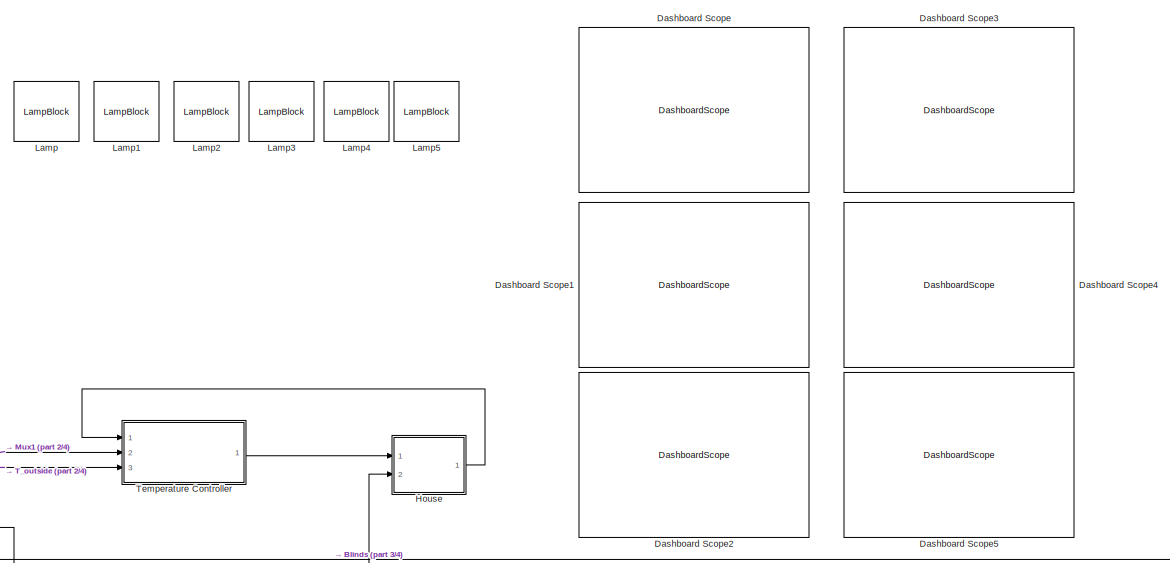
[diagram: root canvas - part 1/4, top right region]
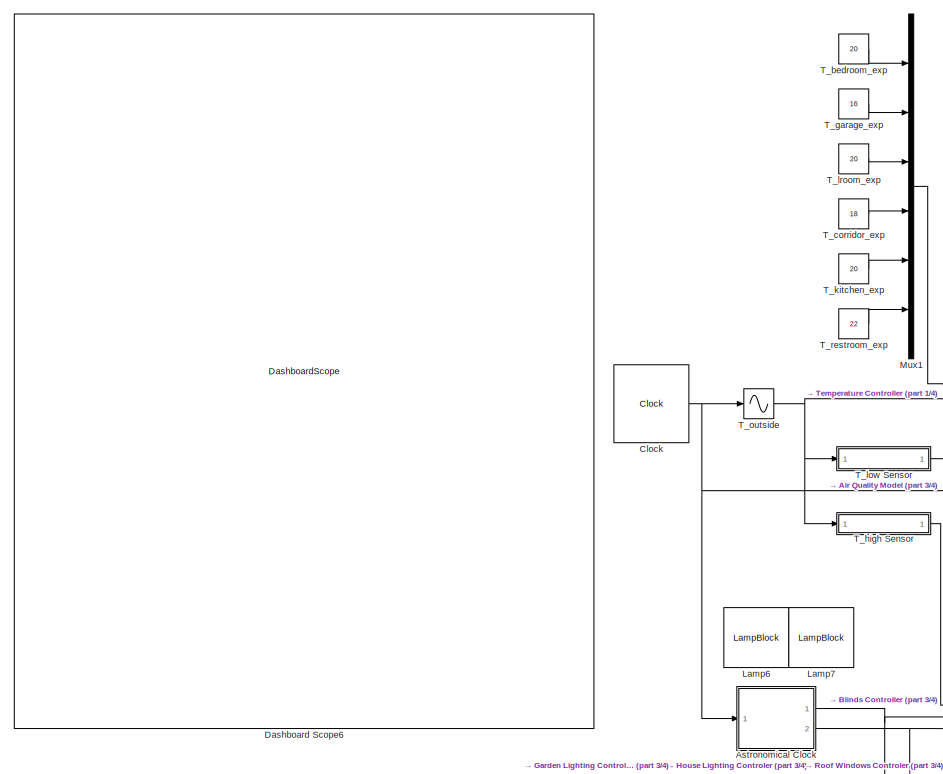
[diagram: root canvas - part 2/4, top left region]
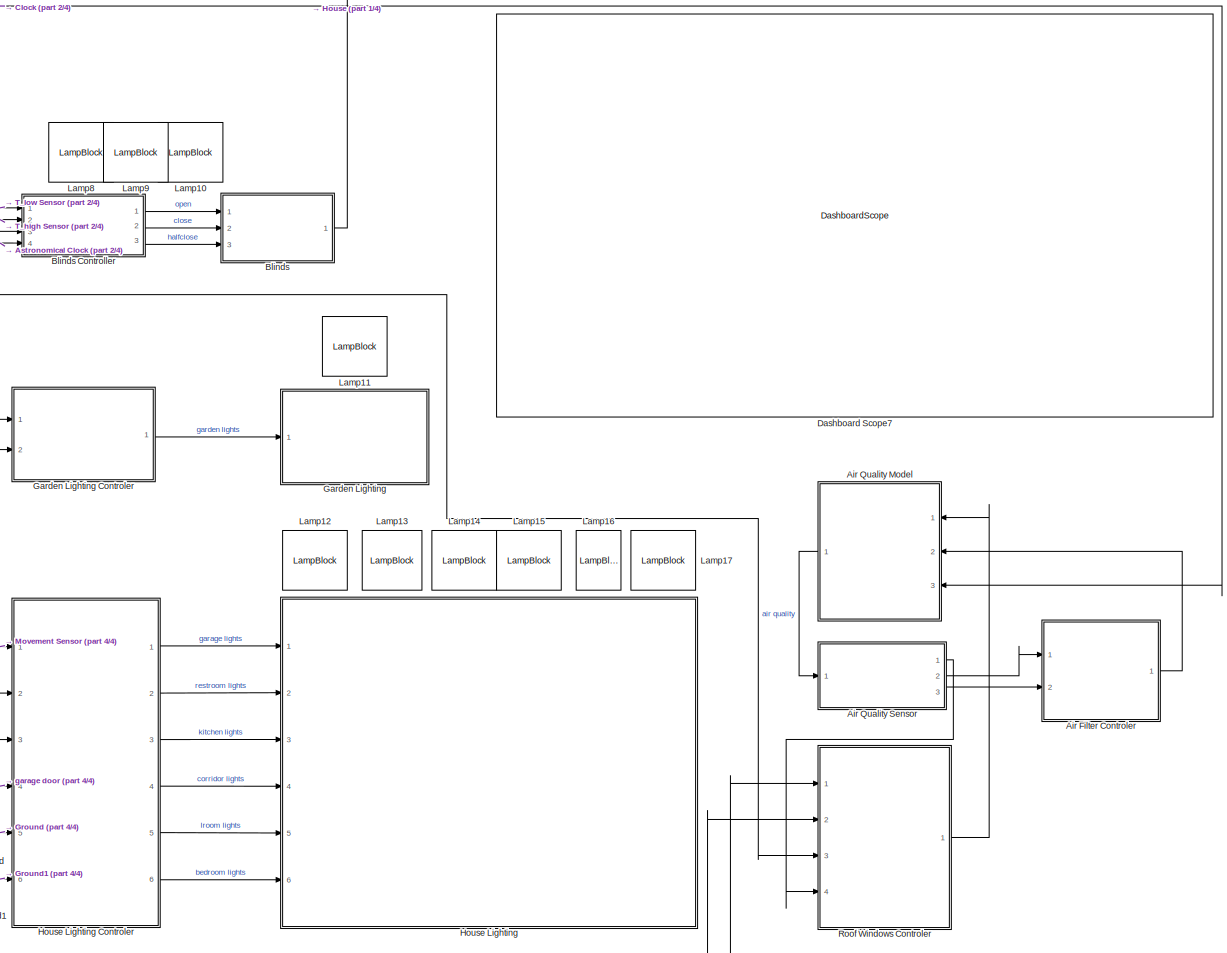
[diagram: root canvas - part 3/4, middle right region]
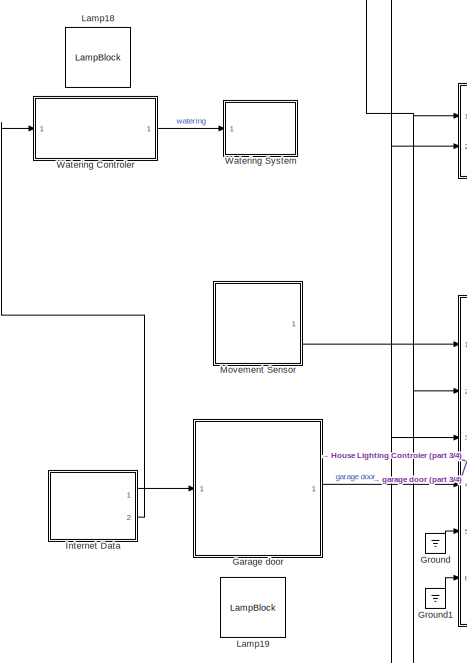
[diagram: root canvas - part 4/4, bottom center region]
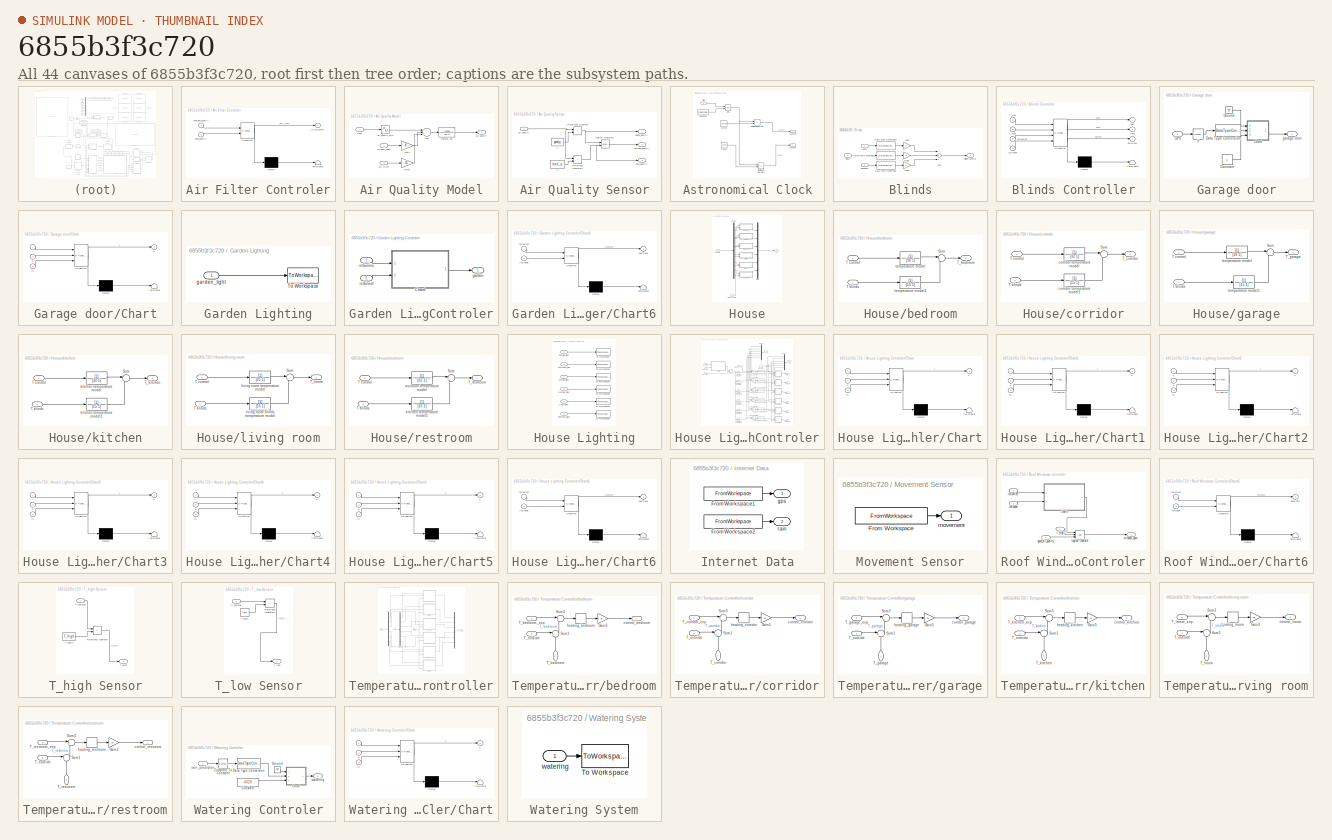
[diagram: thumbnail index - all 44 canvases of the model, root first then tree order]
MODEL slx_6855b3f3c720
KIND model
CONFIG AbsTol = auto
CONFIG EnableMultiTasking = off
CONFIG FixedStep = auto
CONFIG MaxStep = auto
CONFIG MinStep = auto
CONFIG RelTol = 1e-3
CONFIG SampleTimeConstraint = Unconstrained
CONFIG Solver = VariableStepAuto
CONFIG SolverName = VariableStepAuto
CONFIG StartTime = 0.0
CONFIG StopTime = intervals
BLOCK [SubSystem] Air Filter Controler
  ErrorFcn = Stateflow.Translate.translate
  PermitHierarchicalResolution = ExplicitOnly
  Ports = [2, 1]
  RequestExecContextInheritance = off
  SFBlockType = Chart
  TreatAsAtomicUnit = on
BLOCK [Demux] Air Filter Controler/ Demux 
  Outputs = 1
  Ports = [1, 1]
BLOCK [S-Function] Air Filter Controler/ SFunction 
  EnableBusSupport = on
  FunctionName = sf_sfun
  PortCounts = [2 2]
  Ports = [2, 2]
  SFcnIsStateOwnerBlock = off
  SFunctionDeploymentMode = off
  Tag = Stateflow S-Function system_test 12
BLOCK [Terminator] Air Filter Controler/ Terminator 
BLOCK [Inport] Air Filter Controler/average_quality
  IconDisplay = Port number
BLOCK [Inport] Air Filter Controler/bad_quality
  IconDisplay = Port number
  Port = 2
BLOCK [Outport] Air Filter Controler/filter_state
  IconDisplay = Port number
BLOCK [SubSystem] Air Quality Model
  Ports = [3, 1]
  RequestExecContextInheritance = off
BLOCK [Sum] Air Quality Model/Add
  InputSameDT = off
  Inputs = +++
  OutDataTypeStr = Inherit: Inherit via internal rule
  Ports = [3, 1]
  SaturateOnIntegerOverflow = off
BLOCK [Gain] Air Quality Model/Gain
  OutDataTypeStr = Inherit: Inherit via internal rule
  ParamDataTypeStr = Inherit: Inherit via internal rule
  SaturateOnIntegerOverflow = off
BLOCK [Gain] Air Quality Model/Gain1
  Gain = -15
  OutDataTypeStr = Inherit: Inherit via internal rule
  ParamDataTypeStr = Inherit: Inherit via internal rule
  SaturateOnIntegerOverflow = off
BLOCK [TransferFcn] Air Quality Model/Transfer Fcn
  Denominator = [60 1]
  Numerator = [1000]
BLOCK [Inport] Air Quality Model/air_filter
  IconDisplay = Port number
  Port = 2
BLOCK [Outport] Air Quality Model/air_quality
  IconDisplay = Port number
BLOCK [Sin] Air Quality Model/air_quality_sim
  Amplitude = 0.4
  Bias = 0.6
  Frequency = 2*pi/stepsInDay
  Phase = -pi/2
  Ports = [1, 1]
  SampleTime = 0
  TimeSource = Use external signal
BLOCK [Inport] Air Quality Model/clock
  IconDisplay = Port number
  Port = 3
BLOCK [Inport] Air Quality Model/window_open
  IconDisplay = Port number
BLOCK [SubSystem] Air Quality Sensor
  Ports = [1, 3]
  RequestExecContextInheritance = off
BLOCK [Constant] Air Quality Sensor/1
  Value = good_q
BLOCK [Constant] Air Quality Sensor/3
  Value = bad_q
BLOCK [Logic] Air Quality Sensor/Logical Operator1
  AllPortsSameDT = off
  Operator = NAND
  OutDataTypeStr = boolean
  Ports = [2, 1]
BLOCK [RelationalOperator] Air Quality Sensor/Relational Operator
  InputSameDT = off
  Operator = >
  OutDataTypeStr = boolean
  Ports = [2, 1]
  RndMeth = Simplest
BLOCK [RelationalOperator] Air Quality Sensor/Relational Operator2
  InputSameDT = off
  Operator = >
  OutDataTypeStr = boolean
  Ports = [2, 1]
  RndMeth = Simplest
BLOCK [Inport] Air Quality Sensor/air_quality
  IconDisplay = Port number
BLOCK [Outport] Air Quality Sensor/avarage_quality
  IconDisplay = Port number
  Port = 2
BLOCK [Outport] Air Quality Sensor/bad_quality
  IconDisplay = Port number
  Port = 3
BLOCK [Outport] Air Quality Sensor/good_quality
  IconDisplay = Port number
BLOCK [SubSystem] Astronomical Clock
  Ports = [1, 2]
  RequestExecContextInheritance = off
BLOCK [Math] Astronomical Clock/Mod
  Operator = mod
  Ports = [2, 1]
BLOCK [RelationalOperator] Astronomical Clock/Relational Operator
  InputSameDT = off
  Operator = ==
  OutDataTypeStr = boolean
  Ports = [2, 1]
  RndMeth = Simplest
BLOCK [RelationalOperator] Astronomical Clock/Relational Operator1
  InputSameDT = off
  Operator = ==
  OutDataTypeStr = boolean
  Ports = [2, 1]
  RndMeth = Simplest
BLOCK [Outport] Astronomical Clock/isSunrise
  IconDisplay = Port number
BLOCK [Outport] Astronomical Clock/isSunset
  IconDisplay = Port number
  Port = 2
BLOCK [Constant] Astronomical Clock/stepsInDay
  Value = stepsInDay
BLOCK [Constant] Astronomical Clock/sunrise
  Value = sunrise
BLOCK [Constant] Astronomical Clock/sunset
  Value = sunset
BLOCK [Inport] Astronomical Clock/time
  IconDisplay = Port number
BLOCK [SubSystem] Blinds
  Ports = [3, 1]
  RequestExecContextInheritance = off
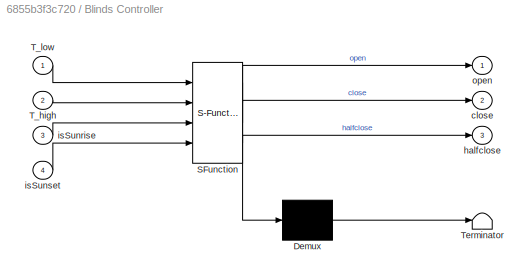
BLOCK [SubSystem] Blinds Controller
  ErrorFcn = Stateflow.Translate.translate
  PermitHierarchicalResolution = ExplicitOnly
  Ports = [4, 3]
  RequestExecContextInheritance = off
  SFBlockType = Chart
  TreatAsAtomicUnit = on
BLOCK [Demux] Blinds Controller/ Demux 
  Outputs = 1
  Ports = [1, 1]
BLOCK [S-Function] Blinds Controller/ SFunction 
  EnableBusSupport = on
  FunctionName = sf_sfun
  PortCounts = [4 4]
  Ports = [4, 4]
  SFcnIsStateOwnerBlock = off
  SFunctionDeploymentMode = off
  Tag = Stateflow S-Function system_test 3
BLOCK [Terminator] Blinds Controller/ Terminator 
BLOCK [Inport] Blinds Controller/T_high
  IconDisplay = Port number
  Port = 2
BLOCK [Inport] Blinds Controller/T_low
  IconDisplay = Port number
BLOCK [Outport] Blinds Controller/close
  IconDisplay = Port number
  Port = 2
BLOCK [Outport] Blinds Controller/halfclose
  IconDisplay = Port number
  Port = 3
BLOCK [Inport] Blinds Controller/isSunrise
  IconDisplay = Port number
  Port = 3
BLOCK [Inport] Blinds Controller/isSunset
  IconDisplay = Port number
  Port = 4
BLOCK [Outport] Blinds Controller/open
  IconDisplay = Port number
BLOCK [Outport] Blinds/Blinds control
  IconDisplay = Port number
BLOCK [DataTypeConversion] Blinds/Data Type Conversion
  RndMeth = Floor
  SaturateOnIntegerOverflow = off
BLOCK [DataTypeConversion] Blinds/Data Type Conversion1
  RndMeth = Floor
  SaturateOnIntegerOverflow = off
BLOCK [DataTypeConversion] Blinds/Data Type Conversion2
  RndMeth = Floor
  SaturateOnIntegerOverflow = off
BLOCK [Gain] Blinds/Gain
  Gain = 2
  OutDataTypeStr = Inherit: Inherit via internal rule
  ParamDataTypeStr = Inherit: Inherit via internal rule
  SaturateOnIntegerOverflow = off
BLOCK [Gain] Blinds/Gain1
  Gain = 0
  OutDataTypeStr = Inherit: Inherit via internal rule
  ParamDataTypeStr = Inherit: Inherit via internal rule
  SaturateOnIntegerOverflow = off
BLOCK [Gain] Blinds/Gain2
  OutDataTypeStr = Inherit: Inherit via internal rule
  ParamDataTypeStr = Inherit: Inherit via internal rule
  SaturateOnIntegerOverflow = off
BLOCK [Sum] Blinds/Sum
  InputSameDT = off
  Inputs = +++
  OutDataTypeStr = Inherit: Inherit via internal rule
  Ports = [3, 1]
  SaturateOnIntegerOverflow = off
BLOCK [Inport] Blinds/close
  IconDisplay = Port number
  Port = 2
BLOCK [Inport] Blinds/halfclose
  IconDisplay = Port number
  Port = 3
BLOCK [Inport] Blinds/open
  IconDisplay = Port number
BLOCK [Clock] Clock 
  Decimation = 1
  DisplayTime = on
BLOCK [DashboardScope] Dashboard Scope
  WebBlockId = 25
BLOCK [DashboardScope] Dashboard Scope1
  WebBlockId = 26
BLOCK [DashboardScope] Dashboard Scope2
  WebBlockId = 27
BLOCK [DashboardScope] Dashboard Scope3
  WebBlockId = 28
BLOCK [DashboardScope] Dashboard Scope4
  WebBlockId = 29
BLOCK [DashboardScope] Dashboard Scope5
  WebBlockId = 30
BLOCK [DashboardScope] Dashboard Scope6
  WebBlockId = 31
  Ymax = 30
BLOCK [DashboardScope] Dashboard Scope7
  WebBlockId = 321
  Ymax = 1000
  Ymin = 0
BLOCK [SubSystem] Garage door
  Ports = [1, 1]
  RequestExecContextInheritance = off
BLOCK [SubSystem] Garage door/Chart
  ErrorFcn = Stateflow.Translate.translate
  PermitHierarchicalResolution = ExplicitOnly
  Ports = [3, 1]
  RequestExecContextInheritance = off
  SFBlockType = Chart
  TreatAsAtomicUnit = on
BLOCK [Demux] Garage door/Chart/ Demux 
  Outputs = 1
  Ports = [1, 1]
BLOCK [S-Function] Garage door/Chart/ SFunction 
  EnableBusSupport = on
  FunctionName = sf_sfun
  PortCounts = [3 2]
  Ports = [3, 2]
  SFcnIsStateOwnerBlock = off
  SFunctionDeploymentMode = off
  Tag = Stateflow S-Function system_test 10
BLOCK [Terminator] Garage door/Chart/ Terminator 
BLOCK [Inport] Garage door/Chart/ts
  IconDisplay = Port number
  Port = 3
BLOCK [Inport] Garage door/Chart/u
  IconDisplay = Port number
  Port = 2
BLOCK [Outport] Garage door/Chart/x
  IconDisplay = Port number
BLOCK [Inport] Garage door/Chart/y
  IconDisplay = Port number
BLOCK [Constant] Garage door/Constant
  Value = 5
BLOCK [DataTypeConversion] Garage door/Data Type Conversion
  RndMeth = Floor
  SaturateOnIntegerOverflow = off
BLOCK [Inport] Garage door/GPS
  IconDisplay = Port number
BLOCK [Ground] Garage door/Ground
BLOCK [Outport] Garage door/garage door
  IconDisplay = Port number
BLOCK [Reference] Garage door/if  REF=simulink/Logic and Bit
Operations/Compare
To Constant
  Ports = [1, 1]
  SourceBlock = simulink/Logic and Bit\nOperations/Compare\nTo Constant
  SourceProductBaseCode = SL
  SourceProductName = Simulink
  SourceType = Compare To Constant
BLOCK [SubSystem] Garden Lighting
  Ports = [1]
  RequestExecContextInheritance = off
BLOCK [SubSystem] Garden Lighting Controler
  Ports = [2, 1]
  RequestExecContextInheritance = off
BLOCK [SubSystem] Garden Lighting Controler/Chart6
  ErrorFcn = Stateflow.Translate.translate
  PermitHierarchicalResolution = ExplicitOnly
  Ports = [2, 1]
  RequestExecContextInheritance = off
  SFBlockType = Chart
  TreatAsAtomicUnit = on
BLOCK [Demux] Garden Lighting Controler/Chart6/ Demux 
  Outputs = 1
  Ports = [1, 1]
BLOCK [S-Function] Garden Lighting Controler/Chart6/ SFunction 
  EnableBusSupport = on
  FunctionName = sf_sfun
  PortCounts = [2 2]
  Ports = [2, 2]
  SFcnIsStateOwnerBlock = off
  SFunctionDeploymentMode = off
  Tag = Stateflow S-Function system_test 8
BLOCK [Terminator] Garden Lighting Controler/Chart6/ Terminator 
BLOCK [Inport] Garden Lighting Controler/Chart6/isSunrise
  IconDisplay = Port number
BLOCK [Inport] Garden Lighting Controler/Chart6/isSunset
  IconDisplay = Port number
  Port = 2
BLOCK [Outport] Garden Lighting Controler/Chart6/sunState
  IconDisplay = Port number
BLOCK [Outport] Garden Lighting Controler/garden
  IconDisplay = Port number
BLOCK [Inport] Garden Lighting Controler/isSunrise
  IconDisplay = Port number
BLOCK [Inport] Garden Lighting Controler/isSunset
  IconDisplay = Port number
  Port = 2
BLOCK [ToWorkspace] Garden Lighting/To Workspace
  FixptAsFi = on
  MaxDataPoints = inf
  Ports = [1]
  SampleTime = -1
  Save2DSignal = 3-D array (concatenate along third dimension)
  SaveFormat = Timeseries
  VariableName = garden_light
BLOCK [Inport] Garden Lighting/garden_light
  IconDisplay = Port number
BLOCK [Ground] Ground
BLOCK [Ground] Ground1
BLOCK [SubSystem] House
  Ports = [2, 1]
  RequestExecContextInheritance = off
BLOCK [SubSystem] House Lighting
  Ports = [6]
  RequestExecContextInheritance = off
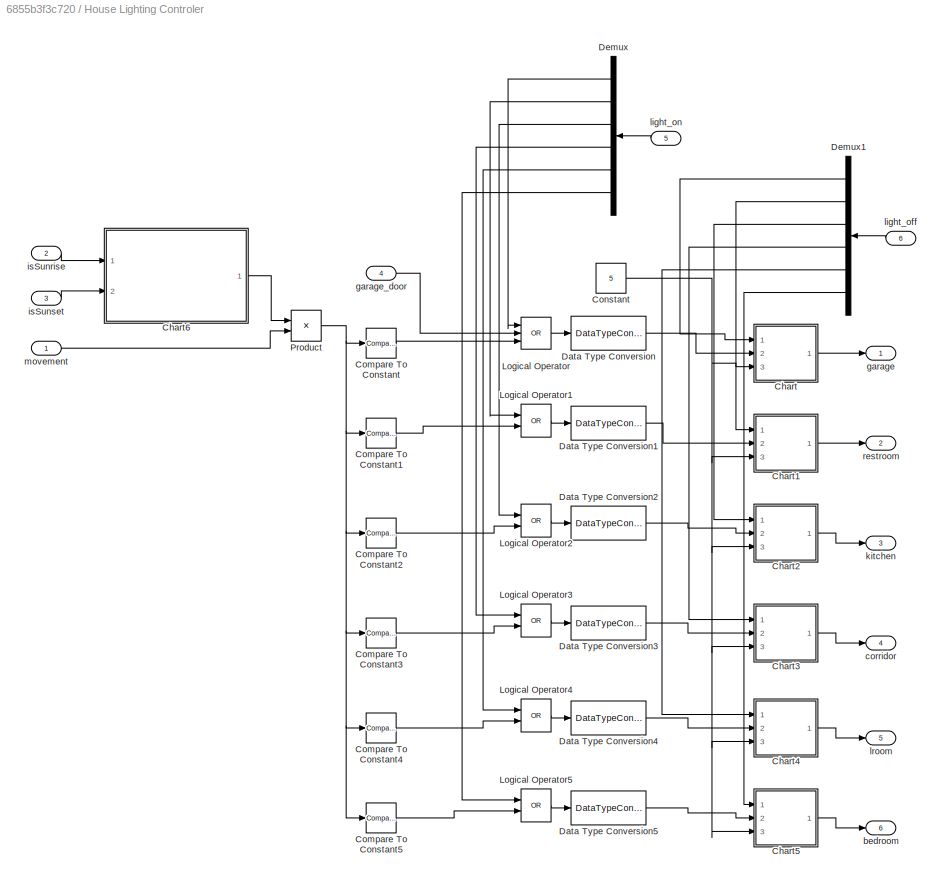
BLOCK [SubSystem] House Lighting Controler
  Ports = [6, 6]
  RequestExecContextInheritance = off
BLOCK [SubSystem] House Lighting Controler/Chart
  ErrorFcn = Stateflow.Translate.translate
  PermitHierarchicalResolution = ExplicitOnly
  Ports = [3, 1]
  RequestExecContextInheritance = off
  SFBlockType = Chart
  TreatAsAtomicUnit = on
BLOCK [Demux] House Lighting Controler/Chart/ Demux 
  Outputs = 1
  Ports = [1, 1]
BLOCK [S-Function] House Lighting Controler/Chart/ SFunction 
  EnableBusSupport = on
  FunctionName = sf_sfun
  PortCounts = [3 2]
  Ports = [3, 2]
  SFcnIsStateOwnerBlock = off
  SFunctionDeploymentMode = off
  Tag = Stateflow S-Function system_test 1
BLOCK [Terminator] House Lighting Controler/Chart/ Terminator 
BLOCK [Inport] House Lighting Controler/Chart/ts
  IconDisplay = Port number
  Port = 3
BLOCK [Inport] House Lighting Controler/Chart/u
  IconDisplay = Port number
  Port = 2
BLOCK [Outport] House Lighting Controler/Chart/x
  IconDisplay = Port number
BLOCK [Inport] House Lighting Controler/Chart/y
  IconDisplay = Port number
BLOCK [SubSystem] House Lighting Controler/Chart1
  ErrorFcn = Stateflow.Translate.translate
  PermitHierarchicalResolution = ExplicitOnly
  Ports = [3, 1]
  RequestExecContextInheritance = off
  SFBlockType = Chart
  TreatAsAtomicUnit = on
BLOCK [Demux] House Lighting Controler/Chart1/ Demux 
  Outputs = 1
  Ports = [1, 1]
BLOCK [S-Function] House Lighting Controler/Chart1/ SFunction 
  EnableBusSupport = on
  FunctionName = sf_sfun
  PortCounts = [3 2]
  Ports = [3, 2]
  SFcnIsStateOwnerBlock = off
  SFunctionDeploymentMode = off
  Tag = Stateflow S-Function system_test 2
BLOCK [Terminator] House Lighting Controler/Chart1/ Terminator 
BLOCK [Inport] House Lighting Controler/Chart1/ts
  IconDisplay = Port number
  Port = 3
BLOCK [Inport] House Lighting Controler/Chart1/u
  IconDisplay = Port number
  Port = 2
BLOCK [Outport] House Lighting Controler/Chart1/x
  IconDisplay = Port number
BLOCK [Inport] House Lighting Controler/Chart1/y
  IconDisplay = Port number
BLOCK [SubSystem] House Lighting Controler/Chart2
  ErrorFcn = Stateflow.Translate.translate
  PermitHierarchicalResolution = ExplicitOnly
  Ports = [3, 1]
  RequestExecContextInheritance = off
  SFBlockType = Chart
  TreatAsAtomicUnit = on
BLOCK [Demux] House Lighting Controler/Chart2/ Demux 
  Outputs = 1
  Ports = [1, 1]
BLOCK [S-Function] House Lighting Controler/Chart2/ SFunction 
  EnableBusSupport = on
  FunctionName = sf_sfun
  PortCounts = [3 2]
  Ports = [3, 2]
  SFcnIsStateOwnerBlock = off
  SFunctionDeploymentMode = off
  Tag = Stateflow S-Function system_test 4
BLOCK [Terminator] House Lighting Controler/Chart2/ Terminator 
BLOCK [Inport] House Lighting Controler/Chart2/ts
  IconDisplay = Port number
  Port = 3
BLOCK [Inport] House Lighting Controler/Chart2/u
  IconDisplay = Port number
  Port = 2
BLOCK [Outport] House Lighting Controler/Chart2/x
  IconDisplay = Port number
BLOCK [Inport] House Lighting Controler/Chart2/y
  IconDisplay = Port number
BLOCK [SubSystem] House Lighting Controler/Chart3
  ErrorFcn = Stateflow.Translate.translate
  PermitHierarchicalResolution = ExplicitOnly
  Ports = [3, 1]
  RequestExecContextInheritance = off
  SFBlockType = Chart
  TreatAsAtomicUnit = on
BLOCK [Demux] House Lighting Controler/Chart3/ Demux 
  Outputs = 1
  Ports = [1, 1]
BLOCK [S-Function] House Lighting Controler/Chart3/ SFunction 
  EnableBusSupport = on
  FunctionName = sf_sfun
  PortCounts = [3 2]
  Ports = [3, 2]
  SFcnIsStateOwnerBlock = off
  SFunctionDeploymentMode = off
  Tag = Stateflow S-Function system_test 5
BLOCK [Terminator] House Lighting Controler/Chart3/ Terminator 
BLOCK [Inport] House Lighting Controler/Chart3/ts
  IconDisplay = Port number
  Port = 3
BLOCK [Inport] House Lighting Controler/Chart3/u
  IconDisplay = Port number
  Port = 2
BLOCK [Outport] House Lighting Controler/Chart3/x
  IconDisplay = Port number
BLOCK [Inport] House Lighting Controler/Chart3/y
  IconDisplay = Port number
BLOCK [SubSystem] House Lighting Controler/Chart4
  ErrorFcn = Stateflow.Translate.translate
  PermitHierarchicalResolution = ExplicitOnly
  Ports = [3, 1]
  RequestExecContextInheritance = off
  SFBlockType = Chart
  TreatAsAtomicUnit = on
BLOCK [Demux] House Lighting Controler/Chart4/ Demux 
  Outputs = 1
  Ports = [1, 1]
BLOCK [S-Function] House Lighting Controler/Chart4/ SFunction 
  EnableBusSupport = on
  FunctionName = sf_sfun
  PortCounts = [3 2]
  Ports = [3, 2]
  SFcnIsStateOwnerBlock = off
  SFunctionDeploymentMode = off
  Tag = Stateflow S-Function system_test 6
BLOCK [Terminator] House Lighting Controler/Chart4/ Terminator 
BLOCK [Inport] House Lighting Controler/Chart4/ts
  IconDisplay = Port number
  Port = 3
BLOCK [Inport] House Lighting Controler/Chart4/u
  IconDisplay = Port number
  Port = 2
BLOCK [Outport] House Lighting Controler/Chart4/x
  IconDisplay = Port number
BLOCK [Inport] House Lighting Controler/Chart4/y
  IconDisplay = Port number
BLOCK [SubSystem] House Lighting Controler/Chart5
  ErrorFcn = Stateflow.Translate.translate
  PermitHierarchicalResolution = ExplicitOnly
  Ports = [3, 1]
  RequestExecContextInheritance = off
  SFBlockType = Chart
  TreatAsAtomicUnit = on
BLOCK [Demux] House Lighting Controler/Chart5/ Demux 
  Outputs = 1
  Ports = [1, 1]
BLOCK [S-Function] House Lighting Controler/Chart5/ SFunction 
  EnableBusSupport = on
  FunctionName = sf_sfun
  PortCounts = [3 2]
  Ports = [3, 2]
  SFcnIsStateOwnerBlock = off
  SFunctionDeploymentMode = off
  Tag = Stateflow S-Function system_test 7
BLOCK [Terminator] House Lighting Controler/Chart5/ Terminator 
BLOCK [Inport] House Lighting Controler/Chart5/ts
  IconDisplay = Port number
  Port = 3
BLOCK [Inport] House Lighting Controler/Chart5/u
  IconDisplay = Port number
  Port = 2
BLOCK [Outport] House Lighting Controler/Chart5/x
  IconDisplay = Port number
BLOCK [Inport] House Lighting Controler/Chart5/y
  IconDisplay = Port number
BLOCK [SubSystem] House Lighting Controler/Chart6
  ErrorFcn = Stateflow.Translate.translate
  PermitHierarchicalResolution = ExplicitOnly
  Ports = [2, 1]
  RequestExecContextInheritance = off
  SFBlockType = Chart
  TreatAsAtomicUnit = on
BLOCK [Demux] House Lighting Controler/Chart6/ Demux 
  Outputs = 1
  Ports = [1, 1]
BLOCK [S-Function] House Lighting Controler/Chart6/ SFunction 
  EnableBusSupport = on
  FunctionName = sf_sfun
  PortCounts = [2 2]
  Ports = [2, 2]
  SFcnIsStateOwnerBlock = off
  SFunctionDeploymentMode = off
  Tag = Stateflow S-Function system_test 9
BLOCK [Terminator] House Lighting Controler/Chart6/ Terminator 
BLOCK [Inport] House Lighting Controler/Chart6/isSunrise
  IconDisplay = Port number
BLOCK [Inport] House Lighting Controler/Chart6/isSunset
  IconDisplay = Port number
  Port = 2
BLOCK [Outport] House Lighting Controler/Chart6/sunState
  IconDisplay = Port number
BLOCK [Reference] House Lighting Controler/Compare To Constant  REF=simulink/Logic and Bit
Operations/Compare
To Constant
  Ports = [1, 1]
  SourceBlock = simulink/Logic and Bit\nOperations/Compare\nTo Constant
  SourceProductBaseCode = SL
  SourceProductName = Simulink
  SourceType = Compare To Constant
BLOCK [Reference] House Lighting Controler/Compare To Constant1  REF=simulink/Logic and Bit
Operations/Compare
To Constant
  Ports = [1, 1]
  SourceBlock = simulink/Logic and Bit\nOperations/Compare\nTo Constant
  SourceProductBaseCode = SL
  SourceProductName = Simulink
  SourceType = Compare To Constant
BLOCK [Reference] House Lighting Controler/Compare To Constant2  REF=simulink/Logic and Bit
Operations/Compare
To Constant
  Ports = [1, 1]
  SourceBlock = simulink/Logic and Bit\nOperations/Compare\nTo Constant
  SourceProductBaseCode = SL
  SourceProductName = Simulink
  SourceType = Compare To Constant
BLOCK [Reference] House Lighting Controler/Compare To Constant3  REF=simulink/Logic and Bit
Operations/Compare
To Constant
  Ports = [1, 1]
  SourceBlock = simulink/Logic and Bit\nOperations/Compare\nTo Constant
  SourceProductBaseCode = SL
  SourceProductName = Simulink
  SourceType = Compare To Constant
BLOCK [Reference] House Lighting Controler/Compare To Constant4  REF=simulink/Logic and Bit
Operations/Compare
To Constant
  Ports = [1, 1]
  SourceBlock = simulink/Logic and Bit\nOperations/Compare\nTo Constant
  SourceProductBaseCode = SL
  SourceProductName = Simulink
  SourceType = Compare To Constant
BLOCK [Reference] House Lighting Controler/Compare To Constant5  REF=simulink/Logic and Bit
Operations/Compare
To Constant
  Ports = [1, 1]
  SourceBlock = simulink/Logic and Bit\nOperations/Compare\nTo Constant
  SourceProductBaseCode = SL
  SourceProductName = Simulink
  SourceType = Compare To Constant
BLOCK [Constant] House Lighting Controler/Constant
  Value = 5
BLOCK [DataTypeConversion] House Lighting Controler/Data Type Conversion
  RndMeth = Floor
  SaturateOnIntegerOverflow = off
BLOCK [DataTypeConversion] House Lighting Controler/Data Type Conversion1
  RndMeth = Floor
  SaturateOnIntegerOverflow = off
BLOCK [DataTypeConversion] House Lighting Controler/Data Type Conversion2
  RndMeth = Floor
  SaturateOnIntegerOverflow = off
BLOCK [DataTypeConversion] House Lighting Controler/Data Type Conversion3
  RndMeth = Floor
  SaturateOnIntegerOverflow = off
BLOCK [DataTypeConversion] House Lighting Controler/Data Type Conversion4
  RndMeth = Floor
  SaturateOnIntegerOverflow = off
BLOCK [DataTypeConversion] House Lighting Controler/Data Type Conversion5
  RndMeth = Floor
  SaturateOnIntegerOverflow = off
BLOCK [Demux] House Lighting Controler/Demux
  DisplayOption = bar
  Outputs = 6
  Ports = [1, 6]
BLOCK [Demux] House Lighting Controler/Demux1
  DisplayOption = bar
  Outputs = 6
  Ports = [1, 6]
BLOCK [Logic] House Lighting Controler/Logical Operator
  AllPortsSameDT = off
  Inputs = 3
  Operator = OR
  OutDataTypeStr = boolean
  Ports = [3, 1]
BLOCK [Logic] House Lighting Controler/Logical Operator1
  AllPortsSameDT = off
  Operator = OR
  OutDataTypeStr = boolean
  Ports = [2, 1]
BLOCK [Logic] House Lighting Controler/Logical Operator2
  AllPortsSameDT = off
  Operator = OR
  OutDataTypeStr = boolean
  Ports = [2, 1]
BLOCK [Logic] House Lighting Controler/Logical Operator3
  AllPortsSameDT = off
  Operator = OR
  OutDataTypeStr = boolean
  Ports = [2, 1]
BLOCK [Logic] House Lighting Controler/Logical Operator4
  AllPortsSameDT = off
  Operator = OR
  OutDataTypeStr = boolean
  Ports = [2, 1]
BLOCK [Logic] House Lighting Controler/Logical Operator5
  AllPortsSameDT = off
  Operator = OR
  OutDataTypeStr = boolean
  Ports = [2, 1]
BLOCK [Product] House Lighting Controler/Product
  InputSameDT = off
  OutDataTypeStr = Inherit: Inherit via internal rule
  Ports = [2, 1]
  RndMeth = Floor
  SaturateOnIntegerOverflow = off
BLOCK [Outport] House Lighting Controler/bedroom
  IconDisplay = Port number
  Port = 6
BLOCK [Outport] House Lighting Controler/corridor
  IconDisplay = Port number
  Port = 4
BLOCK [Outport] House Lighting Controler/garage
  IconDisplay = Port number
BLOCK [Inport] House Lighting Controler/garage_door
  IconDisplay = Port number
  Port = 4
BLOCK [Inport] House Lighting Controler/isSunrise
  IconDisplay = Port number
  Port = 2
BLOCK [Inport] House Lighting Controler/isSunset
  IconDisplay = Port number
  Port = 3
BLOCK [Outport] House Lighting Controler/kitchen
  IconDisplay = Port number
  Port = 3
BLOCK [Inport] House Lighting Controler/light_off
  IconDisplay = Port number
  Port = 6
BLOCK [Inport] House Lighting Controler/light_on
  IconDisplay = Port number
  Port = 5
BLOCK [Outport] House Lighting Controler/lroom
  IconDisplay = Port number
  Port = 5
BLOCK [Inport] House Lighting Controler/movement
  IconDisplay = Port number
BLOCK [Outport] House Lighting Controler/restroom
  IconDisplay = Port number
  Port = 2
BLOCK [ToWorkspace] House Lighting/To Workspace
  FixptAsFi = on
  MaxDataPoints = inf
  Ports = [1]
  SampleTime = -1
  Save2DSignal = 3-D array (concatenate along third dimension)
  SaveFormat = Timeseries
  VariableName = garage_light
BLOCK [ToWorkspace] House Lighting/To Workspace1
  FixptAsFi = on
  MaxDataPoints = inf
  Ports = [1]
  SampleTime = -1
  Save2DSignal = 3-D array (concatenate along third dimension)
  SaveFormat = Timeseries
  VariableName = restroom_light
BLOCK [ToWorkspace] House Lighting/To Workspace2
  FixptAsFi = on
  MaxDataPoints = inf
  Ports = [1]
  SampleTime = -1
  Save2DSignal = 3-D array (concatenate along third dimension)
  SaveFormat = Timeseries
  VariableName = kitchen_light
BLOCK [ToWorkspace] House Lighting/To Workspace3
  FixptAsFi = on
  MaxDataPoints = inf
  Ports = [1]
  SampleTime = -1
  Save2DSignal = 3-D array (concatenate along third dimension)
  SaveFormat = Timeseries
  VariableName = corridor_light
BLOCK [ToWorkspace] House Lighting/To Workspace4
  FixptAsFi = on
  MaxDataPoints = inf
  Ports = [1]
  SampleTime = -1
  Save2DSignal = 3-D array (concatenate along third dimension)
  SaveFormat = Timeseries
  VariableName = lroom_light
BLOCK [ToWorkspace] House Lighting/To Workspace5
  FixptAsFi = on
  MaxDataPoints = inf
  Ports = [1]
  SampleTime = -1
  Save2DSignal = 3-D array (concatenate along third dimension)
  SaveFormat = Timeseries
  VariableName = bedroom_light
BLOCK [Inport] House Lighting/bedroom_light
  IconDisplay = Port number
  Port = 6
BLOCK [Inport] House Lighting/corridor_light
  IconDisplay = Port number
  Port = 4
BLOCK [Inport] House Lighting/garage_light
  IconDisplay = Port number
BLOCK [Inport] House Lighting/kitchen_light
  IconDisplay = Port number
  Port = 3
BLOCK [Inport] House Lighting/lroom_light
  IconDisplay = Port number
  Port = 5
BLOCK [Inport] House Lighting/restroom_light
  IconDisplay = Port number
  Port = 2
BLOCK [Inport] House/Blinds control
  IconDisplay = Port number
  Port = 2
BLOCK [Demux] House/Demux
  DisplayOption = bar
  Outputs = 6
  Ports = [1, 6]
BLOCK [Mux] House/Mux
  DisplayOption = bar
  Inputs = 6
  Ports = [6, 1]
BLOCK [Outport] House/T
  IconDisplay = Port number
BLOCK [Inport] House/T control
  IconDisplay = Port number
BLOCK [SubSystem] House/bedroom
  Ports = [2, 1]
  RequestExecContextInheritance = off
BLOCK [Sum] House/bedroom/Sum
  IconShape = round
  InputSameDT = off
  Inputs = |++
  OutDataTypeStr = Inherit: Inherit via internal rule
  Ports = [2, 1]
  SaturateOnIntegerOverflow = off
BLOCK [Inport] House/bedroom/T blinds
  IconDisplay = Port number
  Port = 2
BLOCK [Inport] House/bedroom/T control
  IconDisplay = Port number
BLOCK [Outport] House/bedroom/T_bedroom
  IconDisplay = Port number
BLOCK [TransferFcn] House/bedroom/temperature model
  Denominator = [30 1]
BLOCK [TransferFcn] House/bedroom/temperature model1
  Denominator = [15 1]
BLOCK [SubSystem] House/corridor
  Ports = [2, 1]
  RequestExecContextInheritance = off
BLOCK [Sum] House/corridor/Sum
  IconShape = round
  InputSameDT = off
  Inputs = |++
  OutDataTypeStr = Inherit: Inherit via internal rule
  Ports = [2, 1]
  SaturateOnIntegerOverflow = off
BLOCK [Inport] House/corridor/T blinds
  IconDisplay = Port number
  Port = 2
BLOCK [Inport] House/corridor/T control
  IconDisplay = Port number
BLOCK [Outport] House/corridor/T_corridor
  IconDisplay = Port number
BLOCK [TransferFcn] House/corridor/corridor temperature model
  Denominator = [32 1]
BLOCK [TransferFcn] House/corridor/corridor temperature model1
  Denominator = [15 1]
BLOCK [SubSystem] House/garage
  Ports = [2, 1]
  RequestExecContextInheritance = off
BLOCK [Sum] House/garage/Sum
  IconShape = round
  InputSameDT = off
  Inputs = |++
  OutDataTypeStr = Inherit: Inherit via internal rule
  Ports = [2, 1]
  SaturateOnIntegerOverflow = off
BLOCK [Inport] House/garage/T blinds
  IconDisplay = Port number
  Port = 2
BLOCK [Inport] House/garage/T control
  IconDisplay = Port number
BLOCK [Outport] House/garage/T_garage
  IconDisplay = Port number
BLOCK [TransferFcn] House/garage/temperature model
  Denominator = [18 1]
BLOCK [TransferFcn] House/garage/temperature model1
  Denominator = [15 1]
BLOCK [SubSystem] House/kitchen
  Ports = [2, 1]
  RequestExecContextInheritance = off
BLOCK [Sum] House/kitchen/Sum
  IconShape = round
  InputSameDT = off
  Inputs = |++
  OutDataTypeStr = Inherit: Inherit via internal rule
  Ports = [2, 1]
  SaturateOnIntegerOverflow = off
BLOCK [Inport] House/kitchen/T blinds
  IconDisplay = Port number
  Port = 2
BLOCK [Inport] House/kitchen/T control
  IconDisplay = Port number
BLOCK [Outport] House/kitchen/T_kitchen
  IconDisplay = Port number
BLOCK [TransferFcn] House/kitchen/kitchen temperature model
  Denominator = [32 1]
BLOCK [TransferFcn] House/kitchen/kitchen temperature model1
  Denominator = [15 1]
BLOCK [SubSystem] House/living room
  Ports = [2, 1]
  RequestExecContextInheritance = off
BLOCK [Sum] House/living room/Sum
  IconShape = round
  InputSameDT = off
  Inputs = |++
  OutDataTypeStr = Inherit: Inherit via internal rule
  Ports = [2, 1]
  SaturateOnIntegerOverflow = off
BLOCK [Inport] House/living room/T blinds
  IconDisplay = Port number
  Port = 2
BLOCK [Inport] House/living room/T control
  IconDisplay = Port number
BLOCK [Outport] House/living room/T_lroom
  IconDisplay = Port number
BLOCK [TransferFcn] House/living room/living room blinds temperature model
  Denominator = [15 1]
BLOCK [TransferFcn] House/living room/living room temperature model
  Denominator = [25 1]
BLOCK [SubSystem] House/restroom
  Ports = [2, 1]
  RequestExecContextInheritance = off
BLOCK [Sum] House/restroom/Sum
  IconShape = round
  InputSameDT = off
  Inputs = |++
  OutDataTypeStr = Inherit: Inherit via internal rule
  Ports = [2, 1]
  SaturateOnIntegerOverflow = off
BLOCK [Inport] House/restroom/T blinds
  IconDisplay = Port number
  Port = 2
BLOCK [Inport] House/restroom/T control
  IconDisplay = Port number
BLOCK [Outport] House/restroom/T_restroom
  IconDisplay = Port number
BLOCK [TransferFcn] House/restroom/kitchen temperature model1
  Denominator = [15 1]
BLOCK [TransferFcn] House/restroom/restroom temperature model
  Denominator = [32 1]
BLOCK [SubSystem] Internet Data
  Ports = [0, 2]
  RequestExecContextInheritance = off
BLOCK [FromWorkspace] Internet Data/From Workspace1
  SampleTime = 0
  VariableName = inhabitant_gps
  ZeroCross = on
BLOCK [FromWorkspace] Internet Data/From Workspace2
  SampleTime = 0
  VariableName = rain_prediction
  ZeroCross = on
BLOCK [Outport] Internet Data/gps
  IconDisplay = Port number
BLOCK [Outport] Internet Data/rain
  IconDisplay = Port number
  Port = 2
BLOCK [LampBlock] Lamp
  WebBlockId = 80
BLOCK [LampBlock] Lamp1
  WebBlockId = 81
BLOCK [LampBlock] Lamp10
  WebBlockId = 82
BLOCK [LampBlock] Lamp11
  WebBlockId = 235
BLOCK [LampBlock] Lamp12
  WebBlockId = 244
BLOCK [LampBlock] Lamp13
  WebBlockId = 245
BLOCK [LampBlock] Lamp14
  WebBlockId = 246
BLOCK [LampBlock] Lamp15
  WebBlockId = 247
BLOCK [LampBlock] Lamp16
  WebBlockId = 248
BLOCK [LampBlock] Lamp17
  WebBlockId = 249
BLOCK [LampBlock] Lamp18
  WebBlockId = 264
BLOCK [LampBlock] Lamp19
  WebBlockId = 291
BLOCK [LampBlock] Lamp2
  WebBlockId = 83
BLOCK [LampBlock] Lamp3
  WebBlockId = 84
BLOCK [LampBlock] Lamp4
  WebBlockId = 85
BLOCK [LampBlock] Lamp5
  WebBlockId = 86
BLOCK [LampBlock] Lamp6
  WebBlockId = 87
BLOCK [LampBlock] Lamp7
  WebBlockId = 88
BLOCK [LampBlock] Lamp8
  WebBlockId = 89
BLOCK [LampBlock] Lamp9
  WebBlockId = 90
BLOCK [SubSystem] Movement Sensor
  Ports = [0, 1]
  RequestExecContextInheritance = off
BLOCK [FromWorkspace] Movement Sensor/From Workspace
  SampleTime = 0
  VariableName = inhabitant_movement
  ZeroCross = on
BLOCK [Outport] Movement Sensor/movement
  IconDisplay = Port number
BLOCK [Mux] Mux1
  DisplayOption = bar
  Inputs = 6
  Ports = [6, 1]
BLOCK [SubSystem] Roof Windows Controler
  Ports = [4, 1]
  RequestExecContextInheritance = off
BLOCK [SubSystem] Roof Windows Controler/Chart6
  ErrorFcn = Stateflow.Translate.translate
  PermitHierarchicalResolution = ExplicitOnly
  Ports = [2, 1]
  RequestExecContextInheritance = off
  SFBlockType = Chart
  TreatAsAtomicUnit = on
BLOCK [Demux] Roof Windows Controler/Chart6/ Demux 
  Outputs = 1
  Ports = [1, 1]
BLOCK [S-Function] Roof Windows Controler/Chart6/ SFunction 
  EnableBusSupport = on
  FunctionName = sf_sfun
  PortCounts = [2 2]
  Ports = [2, 2]
  SFcnIsStateOwnerBlock = off
  SFunctionDeploymentMode = off
  Tag = Stateflow S-Function system_test 13
BLOCK [Terminator] Roof Windows Controler/Chart6/ Terminator 
BLOCK [Inport] Roof Windows Controler/Chart6/isSunrise
  IconDisplay = Port number
BLOCK [Inport] Roof Windows Controler/Chart6/isSunset
  IconDisplay = Port number
  Port = 2
BLOCK [Outport] Roof Windows Controler/Chart6/sunState
  IconDisplay = Port number
BLOCK [Logic] Roof Windows Controler/Logical Operator
  AllPortsSameDT = off
  Inputs = 3
  OutDataTypeStr = boolean
  Ports = [3, 1]
BLOCK [Inport] Roof Windows Controler/T_high
  IconDisplay = Port number
  Port = 3
BLOCK [Inport] Roof Windows Controler/good_air_quality
  IconDisplay = Port number
  Port = 4
BLOCK [Inport] Roof Windows Controler/isSunrise
  IconDisplay = Port number
BLOCK [Inport] Roof Windows Controler/isSunset
  IconDisplay = Port number
  Port = 2
BLOCK [Outport] Roof Windows Controler/window_open
  IconDisplay = Port number
BLOCK [Constant] T_bedroom_exp
  Value = 20
BLOCK [Constant] T_corridor_exp
  Value = 18
BLOCK [Constant] T_garage_exp
  Value = 16
BLOCK [SubSystem] T_high Sensor
  Ports = [1, 1]
  RequestExecContextInheritance = off
BLOCK [RelationalOperator] T_high Sensor/Relational Operator
  InputSameDT = off
  Operator = >
  OutDataTypeStr = boolean
  Ports = [2, 1]
  RndMeth = Simplest
BLOCK [Constant] T_high Sensor/T_cap_H
  Value = T_high
BLOCK [Outport] T_high Sensor/T_high
  IconDisplay = Port number
BLOCK [Inport] T_high Sensor/T_outside
  IconDisplay = Port number
BLOCK [Constant] T_kitchen_exp
  Value = 20
BLOCK [SubSystem] T_low Sensor
  Ports = [1, 1]
  RequestExecContextInheritance = off
BLOCK [RelationalOperator] T_low Sensor/Relational Operator1
  InputSameDT = off
  Operator = <
  OutDataTypeStr = boolean
  Ports = [2, 1]
  RndMeth = Simplest
BLOCK [Constant] T_low Sensor/T_cap_L
  Value = T_low
BLOCK [Outport] T_low Sensor/T_low
  IconDisplay = Port number
BLOCK [Inport] T_low Sensor/T_outside
  IconDisplay = Port number
BLOCK [Constant] T_lroom_exp
  Value = 20
BLOCK [Sin] T_outside
  Amplitude = 17
  Bias = 10
  Frequency = 2*pi/stepsInDay
  Phase = -pi/2
  Ports = [1, 1]
  SampleTime = 0
  TimeSource = Use external signal
BLOCK [Constant] T_restroom_exp
  Value = 22
BLOCK [SubSystem] Temperature Controller
  Ports = [3, 1]
  RequestExecContextInheritance = off
BLOCK [Demux] Temperature Controller/Demux
  DisplayOption = bar
  Outputs = 6
  Ports = [1, 6]
BLOCK [Demux] Temperature Controller/Demux1
  DisplayOption = bar
  Outputs = 6
  Ports = [1, 6]
BLOCK [Mux] Temperature Controller/Mux
  DisplayOption = bar
  Inputs = 6
  Ports = [6, 1]
BLOCK [Inport] Temperature Controller/T
  IconDisplay = Port number
BLOCK [Outport] Temperature Controller/T control
  IconDisplay = Port number
BLOCK [Inport] Temperature Controller/T_exp
  IconDisplay = Port number
  Port = 2
BLOCK [Inport] Temperature Controller/T_outside
  IconDisplay = Port number
  Port = 3
BLOCK [SubSystem] Temperature Controller/bedroom
  Ports = [3, 1]
  RequestExecContextInheritance = off
BLOCK [Gain] Temperature Controller/bedroom/Gain3
  Gain = 25
  OutDataTypeStr = Inherit: Inherit via internal rule
  ParamDataTypeStr = Inherit: Inherit via internal rule
  SaturateOnIntegerOverflow = off
BLOCK [Sum] Temperature Controller/bedroom/Sum1
  IconShape = round
  InputSameDT = off
  Inputs = |++
  OutDataTypeStr = Inherit: Inherit via internal rule
  Ports = [2, 1]
  SaturateOnIntegerOverflow = off
BLOCK [Sum] Temperature Controller/bedroom/Sum3
  IconShape = round
  InputSameDT = off
  Inputs = |+-
  OutDataTypeStr = Inherit: Inherit via internal rule
  Ports = [2, 1]
  SaturateOnIntegerOverflow = off
BLOCK [Inport] Temperature Controller/bedroom/T_bedroom
  IconDisplay = Port number
BLOCK [Inport] Temperature Controller/bedroom/T_bedroom_exp
  IconDisplay = Port number
  Port = 2
BLOCK [Inport] Temperature Controller/bedroom/T_outside
  IconDisplay = Port number
  Port = 3
BLOCK [Outport] Temperature Controller/bedroom/control_bedroom
  IconDisplay = Port number
BLOCK [Relay] Temperature Controller/bedroom/heating_bedroom
  InputProcessing = Elements as channels (sample based)
  OffSwitchValue = -2
  OnSwitchValue = 2
BLOCK [SubSystem] Temperature Controller/corridor
  Ports = [3, 1]
  RequestExecContextInheritance = off
BLOCK [Gain] Temperature Controller/corridor/Gain3
  Gain = 25
  OutDataTypeStr = Inherit: Inherit via internal rule
  ParamDataTypeStr = Inherit: Inherit via internal rule
  SaturateOnIntegerOverflow = off
BLOCK [Sum] Temperature Controller/corridor/Sum1
  IconShape = round
  InputSameDT = off
  Inputs = |++
  OutDataTypeStr = Inherit: Inherit via internal rule
  Ports = [2, 1]
  SaturateOnIntegerOverflow = off
BLOCK [Sum] Temperature Controller/corridor/Sum3
  IconShape = round
  InputSameDT = off
  Inputs = |+-
  OutDataTypeStr = Inherit: Inherit via internal rule
  Ports = [2, 1]
  SaturateOnIntegerOverflow = off
BLOCK [Inport] Temperature Controller/corridor/T_corridor
  IconDisplay = Port number
BLOCK [Inport] Temperature Controller/corridor/T_corridor_exp
  IconDisplay = Port number
  Port = 2
BLOCK [Inport] Temperature Controller/corridor/T_outside
  IconDisplay = Port number
  Port = 3
BLOCK [Outport] Temperature Controller/corridor/control_corridor
  IconDisplay = Port number
BLOCK [Relay] Temperature Controller/corridor/heating_corridor
  InputProcessing = Elements as channels (sample based)
  OffSwitchValue = -2
  OnSwitchValue = 2
BLOCK [SubSystem] Temperature Controller/garage
  Ports = [3, 1]
  RequestExecContextInheritance = off
BLOCK [Gain] Temperature Controller/garage/Gain3
  Gain = 25
  OutDataTypeStr = Inherit: Inherit via internal rule
  ParamDataTypeStr = Inherit: Inherit via internal rule
  SaturateOnIntegerOverflow = off
BLOCK [Sum] Temperature Controller/garage/Sum1
  IconShape = round
  InputSameDT = off
  Inputs = |++
  OutDataTypeStr = Inherit: Inherit via internal rule
  Ports = [2, 1]
  SaturateOnIntegerOverflow = off
BLOCK [Sum] Temperature Controller/garage/Sum3
  IconShape = round
  InputSameDT = off
  Inputs = |+-
  OutDataTypeStr = Inherit: Inherit via internal rule
  Ports = [2, 1]
  SaturateOnIntegerOverflow = off
BLOCK [Inport] Temperature Controller/garage/T_garage
  IconDisplay = Port number
BLOCK [Inport] Temperature Controller/garage/T_garage_exp
  IconDisplay = Port number
  Port = 2
BLOCK [Inport] Temperature Controller/garage/T_outside
  IconDisplay = Port number
  Port = 3
BLOCK [Outport] Temperature Controller/garage/control_garage
  IconDisplay = Port number
BLOCK [Relay] Temperature Controller/garage/heating_garage
  InputProcessing = Elements as channels (sample based)
  OffSwitchValue = -2
  OnSwitchValue = 2
BLOCK [SubSystem] Temperature Controller/kitchen
  Ports = [3, 1]
  RequestExecContextInheritance = off
BLOCK [Gain] Temperature Controller/kitchen/Gain3
  Gain = 25
  OutDataTypeStr = Inherit: Inherit via internal rule
  ParamDataTypeStr = Inherit: Inherit via internal rule
  SaturateOnIntegerOverflow = off
BLOCK [Sum] Temperature Controller/kitchen/Sum1
  IconShape = round
  InputSameDT = off
  Inputs = |++
  OutDataTypeStr = Inherit: Inherit via internal rule
  Ports = [2, 1]
  SaturateOnIntegerOverflow = off
BLOCK [Sum] Temperature Controller/kitchen/Sum3
  IconShape = round
  InputSameDT = off
  Inputs = |+-
  OutDataTypeStr = Inherit: Inherit via internal rule
  Ports = [2, 1]
  SaturateOnIntegerOverflow = off
BLOCK [Inport] Temperature Controller/kitchen/T_kitchen
  IconDisplay = Port number
BLOCK [Inport] Temperature Controller/kitchen/T_kitchen_exp
  IconDisplay = Port number
  Port = 2
BLOCK [Inport] Temperature Controller/kitchen/T_outside
  IconDisplay = Port number
  Port = 3
BLOCK [Outport] Temperature Controller/kitchen/control_kitchen
  IconDisplay = Port number
BLOCK [Relay] Temperature Controller/kitchen/heating_kitchen
  InputProcessing = Elements as channels (sample based)
  OffSwitchValue = -2
  OnSwitchValue = 2
BLOCK [SubSystem] Temperature Controller/living room
  Ports = [3, 1]
  RequestExecContextInheritance = off
BLOCK [Gain] Temperature Controller/living room/Gain3
  Gain = 25
  OutDataTypeStr = Inherit: Inherit via internal rule
  ParamDataTypeStr = Inherit: Inherit via internal rule
  SaturateOnIntegerOverflow = off
BLOCK [Sum] Temperature Controller/living room/Sum1
  IconShape = round
  InputSameDT = off
  Inputs = |++
  OutDataTypeStr = Inherit: Inherit via internal rule
  Ports = [2, 1]
  SaturateOnIntegerOverflow = off
BLOCK [Sum] Temperature Controller/living room/Sum3
  IconShape = round
  InputSameDT = off
  Inputs = |+-
  OutDataTypeStr = Inherit: Inherit via internal rule
  Ports = [2, 1]
  SaturateOnIntegerOverflow = off
BLOCK [Inport] Temperature Controller/living room/T_lroom
  IconDisplay = Port number
BLOCK [Inport] Temperature Controller/living room/T_lroom_exp
  IconDisplay = Port number
  Port = 2
BLOCK [Inport] Temperature Controller/living room/T_outside
  IconDisplay = Port number
  Port = 3
BLOCK [Outport] Temperature Controller/living room/control_lroom
  IconDisplay = Port number
BLOCK [Relay] Temperature Controller/living room/heating_lroom
  InputProcessing = Elements as channels (sample based)
  OffSwitchValue = -2
  OnSwitchValue = 2
BLOCK [SubSystem] Temperature Controller/restroom
  Ports = [3, 1]
  RequestExecContextInheritance = off
BLOCK [Gain] Temperature Controller/restroom/Gain3
  Gain = 25
  OutDataTypeStr = Inherit: Inherit via internal rule
  ParamDataTypeStr = Inherit: Inherit via internal rule
  SaturateOnIntegerOverflow = off
BLOCK [Sum] Temperature Controller/restroom/Sum1
  IconShape = round
  InputSameDT = off
  Inputs = |++
  OutDataTypeStr = Inherit: Inherit via internal rule
  Ports = [2, 1]
  SaturateOnIntegerOverflow = off
BLOCK [Sum] Temperature Controller/restroom/Sum3
  IconShape = round
  InputSameDT = off
  Inputs = |+-
  OutDataTypeStr = Inherit: Inherit via internal rule
  Ports = [2, 1]
  SaturateOnIntegerOverflow = off
BLOCK [Inport] Temperature Controller/restroom/T_outside
  IconDisplay = Port number
  Port = 3
BLOCK [Inport] Temperature Controller/restroom/T_restroom
  IconDisplay = Port number
BLOCK [Inport] Temperature Controller/restroom/T_restroom_exp
  IconDisplay = Port number
  Port = 2
BLOCK [Outport] Temperature Controller/restroom/control_restroom
  IconDisplay = Port number
BLOCK [Relay] Temperature Controller/restroom/heating_restroom
  InputProcessing = Elements as channels (sample based)
  OffSwitchValue = -2
  OnSwitchValue = 2
BLOCK [SubSystem] Watering Controler
  Ports = [1, 1]
  RequestExecContextInheritance = off
BLOCK [SubSystem] Watering Controler/Chart
  ErrorFcn = Stateflow.Translate.translate
  PermitHierarchicalResolution = ExplicitOnly
  Ports = [3, 1]
  RequestExecContextInheritance = off
  SFBlockType = Chart
  TreatAsAtomicUnit = on
BLOCK [Demux] Watering Controler/Chart/ Demux 
  Outputs = 1
  Ports = [1, 1]
BLOCK [S-Function] Watering Controler/Chart/ SFunction 
  EnableBusSupport = on
  FunctionName = sf_sfun
  PortCounts = [3 2]
  Ports = [3, 2]
  SFcnIsStateOwnerBlock = off
  SFunctionDeploymentMode = off
  Tag = Stateflow S-Function system_test 11
BLOCK [Terminator] Watering Controler/Chart/ Terminator 
BLOCK [Inport] Watering Controler/Chart/ts
  IconDisplay = Port number
  Port = 3
BLOCK [Inport] Watering Controler/Chart/u
  IconDisplay = Port number
  Port = 2
BLOCK [Outport] Watering Controler/Chart/x
  IconDisplay = Port number
BLOCK [Inport] Watering Controler/Chart/y
  IconDisplay = Port number
BLOCK [Reference] Watering Controler/Compare To Constant  REF=simulink/Logic and Bit
Operations/Compare
To Constant
  Ports = [1, 1]
  SourceBlock = simulink/Logic and Bit\nOperations/Compare\nTo Constant
  SourceProductBaseCode = SL
  SourceProductName = Simulink
  SourceType = Compare To Constant
BLOCK [Constant] Watering Controler/Constant
  Value = 4320
BLOCK [DataTypeConversion] Watering Controler/Data Type Conversion
  RndMeth = Floor
  SaturateOnIntegerOverflow = off
BLOCK [Ground] Watering Controler/Ground
BLOCK [Inport] Watering Controler/rain_prediction
  IconDisplay = Port number
BLOCK [Outport] Watering Controler/watering
  IconDisplay = Port number
BLOCK [SubSystem] Watering System
  Ports = [1]
  RequestExecContextInheritance = off
BLOCK [ToWorkspace] Watering System/To Workspace
  FixptAsFi = on
  MaxDataPoints = inf
  Ports = [1]
  SampleTime = -1
  Save2DSignal = 3-D array (concatenate along third dimension)
  SaveFormat = Timeseries
  VariableName = watering_state
BLOCK [Inport] Watering System/watering
  IconDisplay = Port number
LINE Air Filter Controler:1 -> Air Quality Model:2
LINE Air Quality Model/Add:1 -> Air Quality Model/Transfer Fcn:1
LINE Air Quality Model/Gain1:1 -> Air Quality Model/Add:3
LINE Air Quality Model/Gain:1 -> Air Quality Model/Add:2
LINE Air Quality Model/Transfer Fcn:1 -> Air Quality Model/air_quality:1
LINE Air Quality Model/air_filter:1 -> Air Quality Model/Gain1:1
LINE Air Quality Model/air_quality_sim:1 -> Air Quality Model/Add:1
LINE Air Quality Model/clock:1 -> Air Quality Model/air_quality_sim:1
LINE Air Quality Model/window_open:1 -> Air Quality Model/Gain:1
LINE Air Quality Model:1 -> Air Quality Sensor:1
LINE Air Quality Sensor/1:1 -> Air Quality Sensor/Relational Operator:2
LINE Air Quality Sensor/3:1 -> Air Quality Sensor/Relational Operator2:2
LINE Air Quality Sensor/Logical Operator1:1 -> Air Quality Sensor/avarage_quality:1
NET Air Quality Sensor/Relational Operator2:1 -> Air Quality Sensor/Logical Operator1:2, Air Quality Sensor/bad_quality:1
NET Air Quality Sensor/Relational Operator:1 -> Air Quality Sensor/Logical Operator1:1, Air Quality Sensor/good_quality:1
NET Air Quality Sensor/air_quality:1 -> Air Quality Sensor/Relational Operator2:1, Air Quality Sensor/Relational Operator:1
LINE Air Quality Sensor:1 -> Roof Windows Controler:4
LINE Air Quality Sensor:2 -> Air Filter Controler:1
LINE Air Quality Sensor:3 -> Air Filter Controler:2
NET Astronomical Clock/Mod:1 -> Astronomical Clock/Relational Operator1:1, Astronomical Clock/Relational Operator:1
LINE Astronomical Clock/Relational Operator1:1 -> Astronomical Clock/isSunset:1
LINE Astronomical Clock/Relational Operator:1 -> Astronomical Clock/isSunrise:1
LINE Astronomical Clock/stepsInDay:1 -> Astronomical Clock/Mod:2
LINE Astronomical Clock/sunrise:1 -> Astronomical Clock/Relational Operator:2
LINE Astronomical Clock/sunset:1 -> Astronomical Clock/Relational Operator1:2
LINE Astronomical Clock/time:1 -> Astronomical Clock/Mod:1
NET Astronomical Clock:1 -> Blinds Controller:3, Garden Lighting Controler:1, House Lighting Controler:2, Roof Windows Controler:1
NET Astronomical Clock:2 -> Blinds Controller:4, Garden Lighting Controler:2, House Lighting Controler:3, Roof Windows Controler:2
LINE Blinds Controller:1 -> Blinds:1
LINE Blinds Controller:2 -> Blinds:2
LINE Blinds Controller:3 -> Blinds:3
LINE Blinds/Data Type Conversion1:1 -> Blinds/Gain1:1
LINE Blinds/Data Type Conversion2:1 -> Blinds/Gain:1
LINE Blinds/Data Type Conversion:1 -> Blinds/Gain2:1
LINE Blinds/Gain1:1 -> Blinds/Sum:2
LINE Blinds/Gain2:1 -> Blinds/Sum:3
LINE Blinds/Gain:1 -> Blinds/Sum:1
LINE Blinds/Sum:1 -> Blinds/Blinds control:1
LINE Blinds/close:1 -> Blinds/Data Type Conversion1:1
LINE Blinds/halfclose:1 -> Blinds/Data Type Conversion:1
LINE Blinds/open:1 -> Blinds/Data Type Conversion2:1
LINE Blinds:1 -> House:2
NET Clock :1 -> Air Quality Model:3, Astronomical Clock:1, T_outside:1
LINE Garage door/Chart:1 -> Garage door/garage door:1
LINE Garage door/Constant:1 -> Garage door/Chart:3
LINE Garage door/Data Type Conversion:1 -> Garage door/Chart:2
LINE Garage door/GPS:1 -> Garage door/if:1
LINE Garage door/Ground:1 -> Garage door/Chart:1
LINE Garage door/if:1 -> Garage door/Data Type Conversion:1
LINE Garage door:1 -> House Lighting Controler:4
LINE Garden Lighting Controler/Chart6:1 -> Garden Lighting Controler/garden:1
LINE Garden Lighting Controler/isSunrise:1 -> Garden Lighting Controler/Chart6:1
LINE Garden Lighting Controler/isSunset:1 -> Garden Lighting Controler/Chart6:2
LINE Garden Lighting Controler:1 -> Garden Lighting:1
LINE Garden Lighting/garden_light:1 -> Garden Lighting/To Workspace:1
LINE Ground1:1 -> House Lighting Controler:6
LINE Ground:1 -> House Lighting Controler:5
LINE House Lighting Controler/Chart1:1 -> House Lighting Controler/restroom:1
LINE House Lighting Controler/Chart2:1 -> House Lighting Controler/kitchen:1
LINE House Lighting Controler/Chart3:1 -> House Lighting Controler/corridor:1
LINE House Lighting Controler/Chart4:1 -> House Lighting Controler/lroom:1
LINE House Lighting Controler/Chart5:1 -> House Lighting Controler/bedroom:1
LINE House Lighting Controler/Chart6:1 -> House Lighting Controler/Product:1
LINE House Lighting Controler/Chart:1 -> House Lighting Controler/garage:1
LINE House Lighting Controler/Compare To Constant1:1 -> House Lighting Controler/Logical Operator1:2
LINE House Lighting Controler/Compare To Constant2:1 -> House Lighting Controler/Logical Operator2:2
LINE House Lighting Controler/Compare To Constant3:1 -> House Lighting Controler/Logical Operator3:2
LINE House Lighting Controler/Compare To Constant4:1 -> House Lighting Controler/Logical Operator4:2
LINE House Lighting Controler/Compare To Constant5:1 -> House Lighting Controler/Logical Operator5:2
LINE House Lighting Controler/Compare To Constant:1 -> House Lighting Controler/Logical Operator:3
NET House Lighting Controler/Constant:1 -> House Lighting Controler/Chart1:3, House Lighting Controler/Chart2:3, House Lighting Controler/Chart3:3, House Lighting Controler/Chart4:3, House Lighting Controler/Chart5:3, House Lighting Controler/Chart:3
LINE House Lighting Controler/Data Type Conversion1:1 -> House Lighting Controler/Chart1:2
LINE House Lighting Controler/Data Type Conversion2:1 -> House Lighting Controler/Chart2:2
LINE House Lighting Controler/Data Type Conversion3:1 -> House Lighting Controler/Chart3:2
LINE House Lighting Controler/Data Type Conversion4:1 -> House Lighting Controler/Chart4:2
LINE House Lighting Controler/Data Type Conversion5:1 -> House Lighting Controler/Chart5:2
LINE House Lighting Controler/Data Type Conversion:1 -> House Lighting Controler/Chart:2
LINE House Lighting Controler/Demux1:1 -> House Lighting Controler/Chart:1
LINE House Lighting Controler/Demux1:2 -> House Lighting Controler/Chart1:1
LINE House Lighting Controler/Demux1:3 -> House Lighting Controler/Chart2:1
LINE House Lighting Controler/Demux1:4 -> House Lighting Controler/Chart3:1
LINE House Lighting Controler/Demux1:5 -> House Lighting Controler/Chart4:1
LINE House Lighting Controler/Demux1:6 -> House Lighting Controler/Chart5:1
LINE House Lighting Controler/Demux:1 -> House Lighting Controler/Logical Operator:1
LINE House Lighting Controler/Demux:2 -> House Lighting Controler/Logical Operator1:1
LINE House Lighting Controler/Demux:3 -> House Lighting Controler/Logical Operator2:1
LINE House Lighting Controler/Demux:4 -> House Lighting Controler/Logical Operator3:1
LINE House Lighting Controler/Demux:5 -> House Lighting Controler/Logical Operator4:1
LINE House Lighting Controler/Demux:6 -> House Lighting Controler/Logical Operator5:1
LINE House Lighting Controler/Logical Operator1:1 -> House Lighting Controler/Data Type Conversion1:1
LINE House Lighting Controler/Logical Operator2:1 -> House Lighting Controler/Data Type Conversion2:1
LINE House Lighting Controler/Logical Operator3:1 -> House Lighting Controler/Data Type Conversion3:1
LINE House Lighting Controler/Logical Operator4:1 -> House Lighting Controler/Data Type Conversion4:1
LINE House Lighting Controler/Logical Operator5:1 -> House Lighting Controler/Data Type Conversion5:1
LINE House Lighting Controler/Logical Operator:1 -> House Lighting Controler/Data Type Conversion:1
NET House Lighting Controler/Product:1 -> House Lighting Controler/Compare To Constant1:1, House Lighting Controler/Compare To Constant2:1, House Lighting Controler/Compare To Constant3:1, House Lighting Controler/Compare To Constant4:1, House Lighting Controler/Compare To Constant5:1, House Lighting Controler/Compare To Constant:1
LINE House Lighting Controler/garage_door:1 -> House Lighting Controler/Logical Operator:2
LINE House Lighting Controler/isSunrise:1 -> House Lighting Controler/Chart6:1
LINE House Lighting Controler/isSunset:1 -> House Lighting Controler/Chart6:2
LINE House Lighting Controler/light_off:1 -> House Lighting Controler/Demux1:1
LINE House Lighting Controler/light_on:1 -> House Lighting Controler/Demux:1
LINE House Lighting Controler/movement:1 -> House Lighting Controler/Product:2
LINE House Lighting Controler:1 -> House Lighting:1
LINE House Lighting Controler:2 -> House Lighting:2
LINE House Lighting Controler:3 -> House Lighting:3
LINE House Lighting Controler:4 -> House Lighting:4
LINE House Lighting Controler:5 -> House Lighting:5
LINE House Lighting Controler:6 -> House Lighting:6
LINE House Lighting/bedroom_light:1 -> House Lighting/To Workspace5:1
LINE House Lighting/corridor_light:1 -> House Lighting/To Workspace3:1
LINE House Lighting/garage_light:1 -> House Lighting/To Workspace:1
LINE House Lighting/kitchen_light:1 -> House Lighting/To Workspace2:1
LINE House Lighting/lroom_light:1 -> House Lighting/To Workspace4:1
LINE House Lighting/restroom_light:1 -> House Lighting/To Workspace1:1
NET House/Blinds control:1 -> House/bedroom:2, House/corridor:2, House/garage:2, House/kitchen:2, House/living room:2, House/restroom:2
LINE House/Demux:1 -> House/bedroom:1
LINE House/Demux:2 -> House/garage:1
LINE House/Demux:3 -> House/living room:1
LINE House/Demux:4 -> House/corridor:1
LINE House/Demux:5 -> House/kitchen:1
LINE House/Demux:6 -> House/restroom:1
LINE House/Mux:1 -> House/T:1
LINE House/T control:1 -> House/Demux:1
LINE House/bedroom/Sum:1 -> House/bedroom/T_bedroom:1
LINE House/bedroom/T blinds:1 -> House/bedroom/temperature model1:1
LINE House/bedroom/T control:1 -> House/bedroom/temperature model:1
LINE House/bedroom/temperature model1:1 -> House/bedroom/Sum:2
LINE House/bedroom/temperature model:1 -> House/bedroom/Sum:1
LINE House/bedroom:1 -> House/Mux:1
LINE House/corridor/Sum:1 -> House/corridor/T_corridor:1
LINE House/corridor/T blinds:1 -> House/corridor/corridor temperature model1:1
LINE House/corridor/T control:1 -> House/corridor/corridor temperature model:1
LINE House/corridor/corridor temperature model1:1 -> House/corridor/Sum:2
LINE House/corridor/corridor temperature model:1 -> House/corridor/Sum:1
LINE House/corridor:1 -> House/Mux:4
LINE House/garage/Sum:1 -> House/garage/T_garage:1
LINE House/garage/T blinds:1 -> House/garage/temperature model1:1
LINE House/garage/T control:1 -> House/garage/temperature model:1
LINE House/garage/temperature model1:1 -> House/garage/Sum:2
LINE House/garage/temperature model:1 -> House/garage/Sum:1
LINE House/garage:1 -> House/Mux:2
LINE House/kitchen/Sum:1 -> House/kitchen/T_kitchen:1
LINE House/kitchen/T blinds:1 -> House/kitchen/kitchen temperature model1:1
LINE House/kitchen/T control:1 -> House/kitchen/kitchen temperature model:1
LINE House/kitchen/kitchen temperature model1:1 -> House/kitchen/Sum:2
LINE House/kitchen/kitchen temperature model:1 -> House/kitchen/Sum:1
LINE House/kitchen:1 -> House/Mux:5
LINE House/living room/Sum:1 -> House/living room/T_lroom:1
LINE House/living room/T blinds:1 -> House/living room/living room blinds temperature model:1
LINE House/living room/T control:1 -> House/living room/living room temperature model:1
LINE House/living room/living room blinds temperature model:1 -> House/living room/Sum:2
LINE House/living room/living room temperature model:1 -> House/living room/Sum:1
LINE House/living room:1 -> House/Mux:3
LINE House/restroom/Sum:1 -> House/restroom/T_restroom:1
LINE House/restroom/T blinds:1 -> House/restroom/kitchen temperature model1:1
LINE House/restroom/T control:1 -> House/restroom/restroom temperature model:1
LINE House/restroom/kitchen temperature model1:1 -> House/restroom/Sum:2
LINE House/restroom/restroom temperature model:1 -> House/restroom/Sum:1
LINE House/restroom:1 -> House/Mux:6
LINE House:1 -> Temperature Controller:1
LINE Internet Data/From Workspace1:1 -> Internet Data/gps:1
LINE Internet Data/From Workspace2:1 -> Internet Data/rain:1
LINE Internet Data:1 -> Garage door:1
LINE Internet Data:2 -> Watering Controler:1
LINE Movement Sensor/From Workspace:1 -> Movement Sensor/movement:1
LINE Movement Sensor:1 -> House Lighting Controler:1
LINE Mux1:1 -> Temperature Controller:2
LINE Roof Windows Controler/Chart6:1 -> Roof Windows Controler/Logical Operator:1
LINE Roof Windows Controler/Logical Operator:1 -> Roof Windows Controler/window_open:1
LINE Roof Windows Controler/T_high:1 -> Roof Windows Controler/Logical Operator:2
LINE Roof Windows Controler/good_air_quality:1 -> Roof Windows Controler/Logical Operator:3
LINE Roof Windows Controler/isSunrise:1 -> Roof Windows Controler/Chart6:1
LINE Roof Windows Controler/isSunset:1 -> Roof Windows Controler/Chart6:2
LINE Roof Windows Controler:1 -> Air Quality Model:1
LINE T_bedroom_exp:1 -> Mux1:1
LINE T_corridor_exp:1 -> Mux1:4
LINE T_garage_exp:1 -> Mux1:2
LINE T_high Sensor/Relational Operator:1 -> T_high Sensor/T_high:1
LINE T_high Sensor/T_cap_H:1 -> T_high Sensor/Relational Operator:2
LINE T_high Sensor/T_outside:1 -> T_high Sensor/Relational Operator:1
LINE T_high Sensor:1 -> Blinds Controller:2
LINE T_kitchen_exp:1 -> Mux1:5
LINE T_low Sensor/Relational Operator1:1 -> T_low Sensor/T_low:1
LINE T_low Sensor/T_cap_L:1 -> T_low Sensor/Relational Operator1:2
LINE T_low Sensor/T_outside:1 -> T_low Sensor/Relational Operator1:1
NET T_low Sensor:1 -> Blinds Controller:1, Roof Windows Controler:3
LINE T_lroom_exp:1 -> Mux1:3
NET T_outside:1 -> T_high Sensor:1, T_low Sensor:1, Temperature Controller:3
LINE T_restroom_exp:1 -> Mux1:6
LINE Temperature Controller/Demux1:1 -> Temperature Controller/bedroom:2
LINE Temperature Controller/Demux1:2 -> Temperature Controller/garage:2
LINE Temperature Controller/Demux1:3 -> Temperature Controller/living room:2
LINE Temperature Controller/Demux1:4 -> Temperature Controller/corridor:2
LINE Temperature Controller/Demux1:5 -> Temperature Controller/kitchen:2
LINE Temperature Controller/Demux1:6 -> Temperature Controller/restroom:2
LINE Temperature Controller/Demux:1 -> Temperature Controller/bedroom:1
LINE Temperature Controller/Demux:2 -> Temperature Controller/garage:1
LINE Temperature Controller/Demux:3 -> Temperature Controller/living room:1
LINE Temperature Controller/Demux:4 -> Temperature Controller/corridor:1
LINE Temperature Controller/Demux:5 -> Temperature Controller/kitchen:1
LINE Temperature Controller/Demux:6 -> Temperature Controller/restroom:1
LINE Temperature Controller/Mux:1 -> Temperature Controller/T control:1
LINE Temperature Controller/T:1 -> Temperature Controller/Demux:1
LINE Temperature Controller/T_exp:1 -> Temperature Controller/Demux1:1
NET Temperature Controller/T_outside:1 -> Temperature Controller/bedroom:3, Temperature Controller/corridor:3, Temperature Controller/garage:3, Temperature Controller/kitchen:3, Temperature Controller/living room:3, Temperature Controller/restroom:3
LINE Temperature Controller/bedroom/Gain3:1 -> Temperature Controller/bedroom/control_bedroom:1
LINE Temperature Controller/bedroom/Sum1:1 -> Temperature Controller/bedroom/Sum3:2
LINE Temperature Controller/bedroom/Sum3:1 -> Temperature Controller/bedroom/heating_bedroom:1
LINE Temperature Controller/bedroom/T_bedroom:1 -> Temperature Controller/bedroom/Sum1:2
LINE Temperature Controller/bedroom/T_bedroom_exp:1 -> Temperature Controller/bedroom/Sum3:1
LINE Temperature Controller/bedroom/T_outside:1 -> Temperature Controller/bedroom/Sum1:1
LINE Temperature Controller/bedroom/heating_bedroom:1 -> Temperature Controller/bedroom/Gain3:1
LINE Temperature Controller/bedroom:1 -> Temperature Controller/Mux:1
LINE Temperature Controller/corridor/Gain3:1 -> Temperature Controller/corridor/control_corridor:1
LINE Temperature Controller/corridor/Sum1:1 -> Temperature Controller/corridor/Sum3:2
LINE Temperature Controller/corridor/Sum3:1 -> Temperature Controller/corridor/heating_corridor:1
LINE Temperature Controller/corridor/T_corridor:1 -> Temperature Controller/corridor/Sum1:2
LINE Temperature Controller/corridor/T_corridor_exp:1 -> Temperature Controller/corridor/Sum3:1
LINE Temperature Controller/corridor/T_outside:1 -> Temperature Controller/corridor/Sum1:1
LINE Temperature Controller/corridor/heating_corridor:1 -> Temperature Controller/corridor/Gain3:1
LINE Temperature Controller/corridor:1 -> Temperature Controller/Mux:4
LINE Temperature Controller/garage/Gain3:1 -> Temperature Controller/garage/control_garage:1
LINE Temperature Controller/garage/Sum1:1 -> Temperature Controller/garage/Sum3:2
LINE Temperature Controller/garage/Sum3:1 -> Temperature Controller/garage/heating_garage:1
LINE Temperature Controller/garage/T_garage:1 -> Temperature Controller/garage/Sum1:2
LINE Temperature Controller/garage/T_garage_exp:1 -> Temperature Controller/garage/Sum3:1
LINE Temperature Controller/garage/T_outside:1 -> Temperature Controller/garage/Sum1:1
LINE Temperature Controller/garage/heating_garage:1 -> Temperature Controller/garage/Gain3:1
LINE Temperature Controller/garage:1 -> Temperature Controller/Mux:2
LINE Temperature Controller/kitchen/Gain3:1 -> Temperature Controller/kitchen/control_kitchen:1
LINE Temperature Controller/kitchen/Sum1:1 -> Temperature Controller/kitchen/Sum3:2
LINE Temperature Controller/kitchen/Sum3:1 -> Temperature Controller/kitchen/heating_kitchen:1
LINE Temperature Controller/kitchen/T_kitchen:1 -> Temperature Controller/kitchen/Sum1:2
LINE Temperature Controller/kitchen/T_kitchen_exp:1 -> Temperature Controller/kitchen/Sum3:1
LINE Temperature Controller/kitchen/T_outside:1 -> Temperature Controller/kitchen/Sum1:1
LINE Temperature Controller/kitchen/heating_kitchen:1 -> Temperature Controller/kitchen/Gain3:1
LINE Temperature Controller/kitchen:1 -> Temperature Controller/Mux:5
LINE Temperature Controller/living room/Gain3:1 -> Temperature Controller/living room/control_lroom:1
LINE Temperature Controller/living room/Sum1:1 -> Temperature Controller/living room/Sum3:2
LINE Temperature Controller/living room/Sum3:1 -> Temperature Controller/living room/heating_lroom:1
LINE Temperature Controller/living room/T_lroom:1 -> Temperature Controller/living room/Sum1:2
LINE Temperature Controller/living room/T_lroom_exp:1 -> Temperature Controller/living room/Sum3:1
LINE Temperature Controller/living room/T_outside:1 -> Temperature Controller/living room/Sum1:1
LINE Temperature Controller/living room/heating_lroom:1 -> Temperature Controller/living room/Gain3:1
LINE Temperature Controller/living room:1 -> Temperature Controller/Mux:3
LINE Temperature Controller/restroom/Gain3:1 -> Temperature Controller/restroom/control_restroom:1
LINE Temperature Controller/restroom/Sum1:1 -> Temperature Controller/restroom/Sum3:2
LINE Temperature Controller/restroom/Sum3:1 -> Temperature Controller/restroom/heating_restroom:1
LINE Temperature Controller/restroom/T_outside:1 -> Temperature Controller/restroom/Sum1:1
LINE Temperature Controller/restroom/T_restroom:1 -> Temperature Controller/restroom/Sum1:2
LINE Temperature Controller/restroom/T_restroom_exp:1 -> Temperature Controller/restroom/Sum3:1
LINE Temperature Controller/restroom/heating_restroom:1 -> Temperature Controller/restroom/Gain3:1
LINE Temperature Controller/restroom:1 -> Temperature Controller/Mux:6
LINE Temperature Controller:1 -> House:1
LINE Watering Controler/Chart:1 -> Watering Controler/watering:1
LINE Watering Controler/Compare To Constant:1 -> Watering Controler/Data Type Conversion:1
LINE Watering Controler/Constant:1 -> Watering Controler/Chart:3
LINE Watering Controler/Data Type Conversion:1 -> Watering Controler/Chart:2
LINE Watering Controler/Ground:1 -> Watering Controler/Chart:1
LINE Watering Controler/rain_prediction:1 -> Watering Controler/Compare To Constant:1
LINE Watering Controler:1 -> Watering System:1
LINE Watering System/watering:1 -> Watering System/To Workspace:1
note: NET lines group one-source signal fan-out (src -> all destinations, sorted); 1:1 wires keep LINE
CHART House Lighting Controler/Chart states=3 transitions=7
  STATE_LABEL 'Idle\nx=0;\nt1=ts/timeStep;'
  STATE_LABEL 'State1\nx=1;'
  STATE_LABEL 'Wait'
CHART House Lighting Controler/Chart1 states=3 transitions=7
  STATE_LABEL 'Idle\nx=0;\nt1=ts/timeStep;'
  STATE_LABEL 'State1\nx=1;'
  STATE_LABEL 'Wait'
CHART Blinds Controller states=7 transitions=9
  STATE_LABEL 'State'
  STATE_LABEL 'Night'
  STATE_LABEL 'Open\nopen = true;\nhalfclose = false;\nclose = false;'
  STATE_LABEL 'Close\nclose = true;\nopen = false;\nhalfclose = false;'
  STATE_LABEL '[T_low]'
  STATE_LABEL '[~T_low]'
  STATE_LABEL 'Day'
  STATE_LABEL 'HalfClose\nhalfclose = true;\nopen = false;\nclose = false;'
  STATE_LABEL 'Open\nopen = true;\nhalfclose = false;\nclose = false;'
  STATE_LABEL '[T_high]'
  STATE_LABEL '[~T_high]'
  STATE_LABEL '[isSunset]'
  STATE_LABEL '[isSunrise]'
  STATE_LABEL 'Night'
  STATE_LABEL 'Open\nopen = true;\nhalfclose = false;\nclose = false;'
  STATE_LABEL 'Close\nclose = true;\nopen = false;\nhalfclose = false;'
  STATE_LABEL '[T_low]'
  STATE_LABEL '[~T_low]'
  STATE_LABEL 'Open\nopen = true;\nhalfclose = false;\nclose = false;'
  STATE_LABEL 'Close\nclose = true;\nopen = false;\nhalfclose = false;'
  STATE_LABEL 'Day'
  STATE_LABEL 'HalfClose\nhalfclose = true;\nopen = false;\nclose = false;'
  STATE_LABEL 'Open\nopen = true;\nhalfclose = false;\nclose = false;'
  STATE_LABEL '[T_high]'
  STATE_LABEL '[~T_high]'
  STATE_LABEL 'HalfClose\nhalfclose = true;\nopen = false;\nclose = false;'
  STATE_LABEL 'Open\nopen = true;\nhalfclose = false;\nclose = false;'
CHART House Lighting Controler/Chart2 states=3 transitions=7
  STATE_LABEL 'Idle\nx=0;\nt1=ts/timeStep;'
  STATE_LABEL 'State1\nx=1;'
  STATE_LABEL 'Wait'
CHART House Lighting Controler/Chart3 states=3 transitions=7
  STATE_LABEL 'Idle\nx=0;\nt1=ts/timeStep;'
  STATE_LABEL 'State1\nx=1;'
  STATE_LABEL 'Wait'
CHART House Lighting Controler/Chart4 states=3 transitions=7
  STATE_LABEL 'Idle\nx=0;\nt1=ts/timeStep;'
  STATE_LABEL 'State1\nx=1;'
  STATE_LABEL 'Wait'
CHART House Lighting Controler/Chart5 states=3 transitions=7
  STATE_LABEL 'Idle\nx=0;\nt1=ts/timeStep;'
  STATE_LABEL 'State1\nx=1;'
  STATE_LABEL 'Wait'
CHART Garden Lighting Controler/Chart6 states=2 transitions=3
  STATE_LABEL 'sun_up\nsunState=0;\n'
  STATE_LABEL 'sun_down\nsunState=1;'
CHART House Lighting Controler/Chart6 states=2 transitions=3
  STATE_LABEL 'sun_up\nsunState=0;\n'
  STATE_LABEL 'sun_down\nsunState=1;'
CHART Garage door/Chart states=3 transitions=7
  STATE_LABEL 'Idle\nx=0;\nt1=ts/timeStep;'
  STATE_LABEL 'State1\nx=1;'
  STATE_LABEL 'Wait'
CHART Watering Controler/Chart states=3 transitions=7
  STATE_LABEL 'Idle\nx=0;\nt1=ts/timeStep;'
  STATE_LABEL 'State1\nx=1;'
  STATE_LABEL 'Wait'
CHART Air Filter Controler states=2 transitions=3
  STATE_LABEL 'average\nfilter_state=1;'
  STATE_LABEL 'good\nfilter_state=0;'
CHART Roof Windows Controler/Chart6 states=2 transitions=3
  STATE_LABEL 'sun_up\nsunState=false;\n'
  STATE_LABEL 'sun_down\nsunState=true;'
